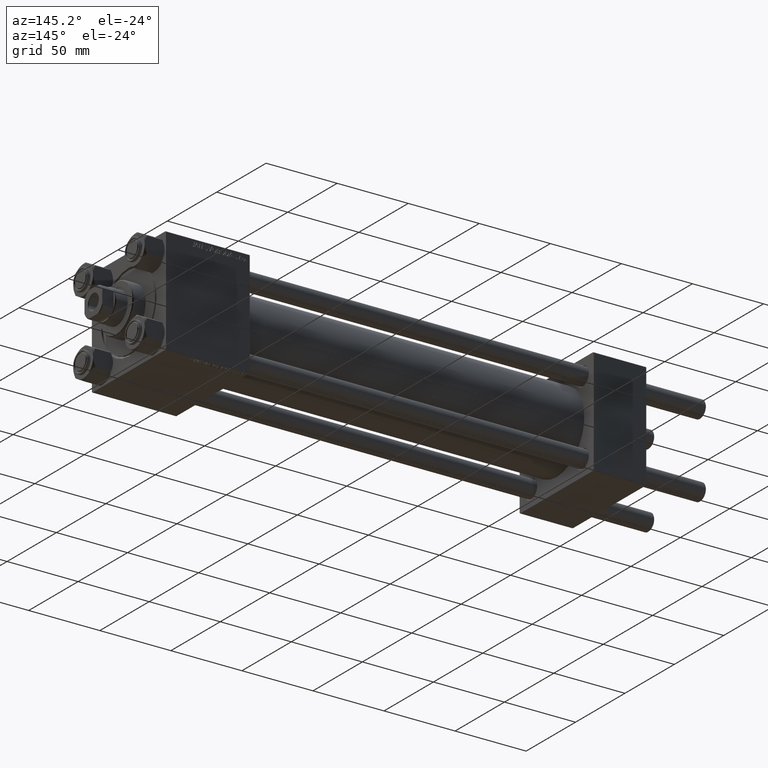
[diagram: clean part render]
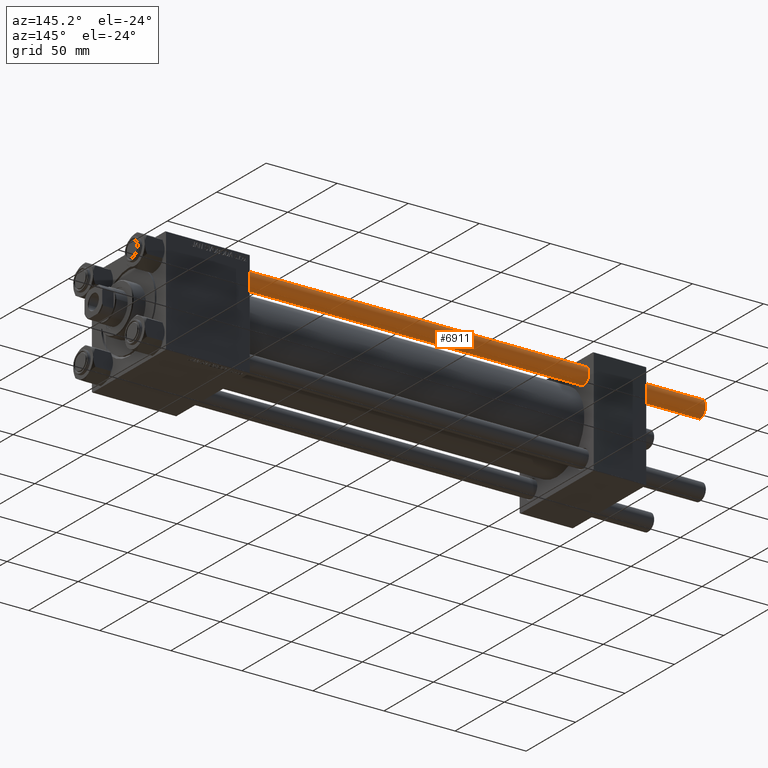
[diagram: same view with one face highlighted and labeled with its STEP entity id]
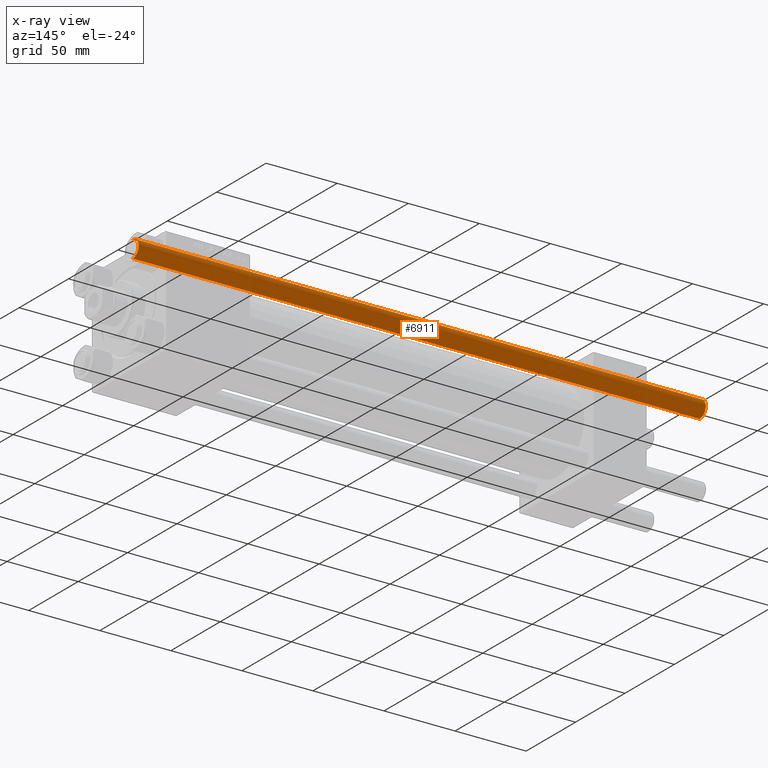
[diagram: x-ray of the same camera — body ghosted, the highlighted face saturated]
A machine part, auxiliary view. The second image highlights one B-rep face of the part: STEP entity #6911.
The next image is the same camera in x-ray: the body ghosted, the highlighted face saturated — about 0% of this face is hidden behind the body in this view.
In plain terms, the highlighted cylindrical surface (edge-blend (fillet) strip) has radius 6 mm, axis along (-1, -0, -0).
Its self-contained STEP definition (entity closure, byte-faithful):
#831 = VERTEX_POINT ( 'NONE', #843 ) ;
#843 = CARTESIAN_POINT ( 'NONE',  ( 6.000000000000000888, 7.347880794884120722E-16, 0.5000000000000004441 ) ) ;
#3641 = VECTOR ( 'NONE', #29474, 1000.000000000000000 ) ;
#4855 = ORIENTED_EDGE ( 'NONE', *, *, #32354, .T. ) ;
#5100 = FACE_OUTER_BOUND ( 'NONE', #15780, .T. ) ;
#6911 = ADVANCED_FACE ( 'NONE', ( #5100 ), #31506, .T. ) ;
#8803 = CARTESIAN_POINT ( 'NONE',  ( -6.000000000000000888, 0.000000000000000000, 399.5000000000000000 ) ) ;
#10881 = LINE ( 'NONE', #45574, #3641 ) ;
#11885 = AXIS2_PLACEMENT_3D ( 'NONE', #47578, #27500, #16657 ) ;
#13195 = VERTEX_POINT ( 'NONE', #44089 ) ;
#15242 = VERTEX_POINT ( 'NONE', #8803 ) ;
#15780 = EDGE_LOOP ( 'NONE', ( #16986, #4855, #37241, #23415 ) ) ;
#15813 = DIRECTION ( 'NONE',  ( 1.000000000000000000, 0.000000000000000000, 0.000000000000000000 ) ) ;
#16657 = DIRECTION ( 'NONE',  ( -1.000000000000000000, 0.000000000000000000, 0.000000000000000000 ) ) ;
#16986 = ORIENTED_EDGE ( 'NONE', *, *, #47815, .T. ) ;
#17466 = DIRECTION ( 'NONE',  ( 0.000000000000000000, 0.000000000000000000, -1.000000000000000000 ) ) ;
#17822 = CARTESIAN_POINT ( 'NONE',  ( 6.000000000000000888, 7.347880794884120722E-16, 400.0000000000000000 ) ) ;
#18223 = CIRCLE ( 'NONE', #36731, 6.000000000000000888 ) ;
#21984 = CARTESIAN_POINT ( 'NONE',  ( 0.000000000000000000, 0.000000000000000000, 399.5000000000000000 ) ) ;
#22892 = VERTEX_POINT ( 'NONE', #38409 ) ;
#23415 = ORIENTED_EDGE ( 'NONE', *, *, #38498, .F. ) ;
#25864 = DIRECTION ( 'NONE',  ( -0.000000000000000000, -0.000000000000000000, -1.000000000000000000 ) ) ;
#27500 = DIRECTION ( 'NONE',  ( -0.000000000000000000, -0.000000000000000000, -1.000000000000000000 ) ) ;
#29474 = DIRECTION ( 'NONE',  ( -0.000000000000000000, -0.000000000000000000, -1.000000000000000000 ) ) ;
#31506 = CYLINDRICAL_SURFACE ( 'NONE', #11885, 6.000000000000000888 ) ;
#32354 = EDGE_CURVE ( 'NONE', #22892, #831, #37426, .T. ) ;
#32795 = DIRECTION ( 'NONE',  ( 1.000000000000000000, 0.000000000000000000, 0.000000000000000000 ) ) ;
#36731 = AXIS2_PLACEMENT_3D ( 'NONE', #38955, #46493, #15813 ) ;
#37241 = ORIENTED_EDGE ( 'NONE', *, *, #44465, .T. ) ;
#37426 = LINE ( 'NONE', #17822, #41235 ) ;
#37603 = CIRCLE ( 'NONE', #47264, 6.000000000000000888 ) ;
#38409 = CARTESIAN_POINT ( 'NONE',  ( 6.000000000000000888, 7.347880794884120722E-16, 399.5000000000000000 ) ) ;
#38498 = EDGE_CURVE ( 'NONE', #15242, #13195, #10881, .T. ) ;
#38955 = CARTESIAN_POINT ( 'NONE',  ( 0.000000000000000000, 0.000000000000000000, 0.5000000000000004441 ) ) ;
#41235 = VECTOR ( 'NONE', #25864, 1000.000000000000000 ) ;
#44089 = CARTESIAN_POINT ( 'NONE',  ( -6.000000000000000888, 0.000000000000000000, 0.5000000000000004441 ) ) ;
#44465 = EDGE_CURVE ( 'NONE', #831, #13195, #18223, .T. ) ;
#45574 = CARTESIAN_POINT ( 'NONE',  ( -6.000000000000000888, 0.000000000000000000, 400.0000000000000000 ) ) ;
#46493 = DIRECTION ( 'NONE',  ( -0.000000000000000000, -0.000000000000000000, 1.000000000000000000 ) ) ;
#47264 = AXIS2_PLACEMENT_3D ( 'NONE', #21984, #17466, #32795 ) ;
#47578 = CARTESIAN_POINT ( 'NONE',  ( 0.000000000000000000, 0.000000000000000000, 400.0000000000000000 ) ) ;
#47815 = EDGE_CURVE ( 'NONE', #15242, #22892, #37603, .T. ) ;